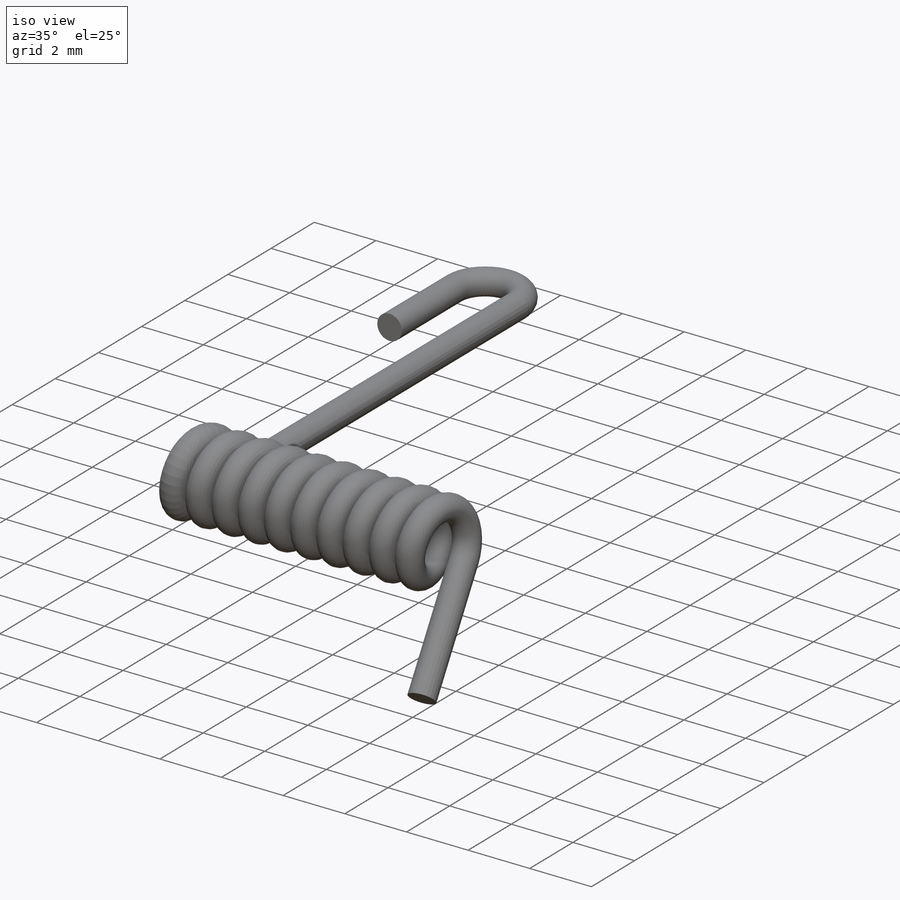
[diagram: iso view]
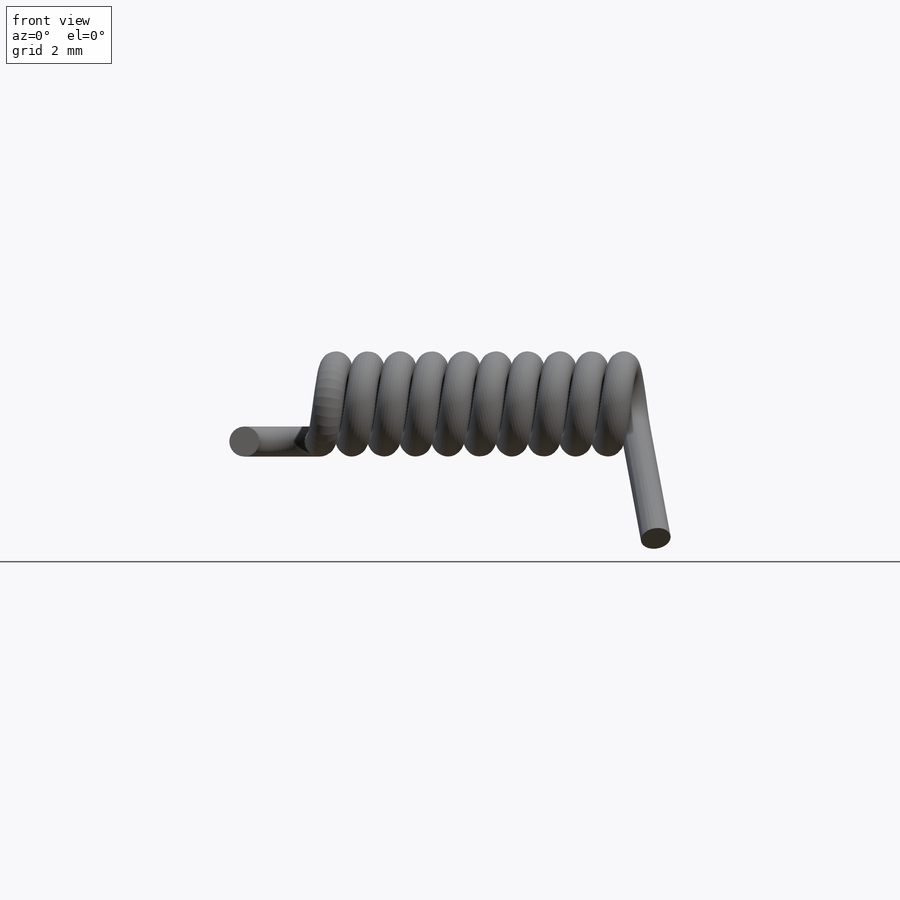
[diagram: front view]
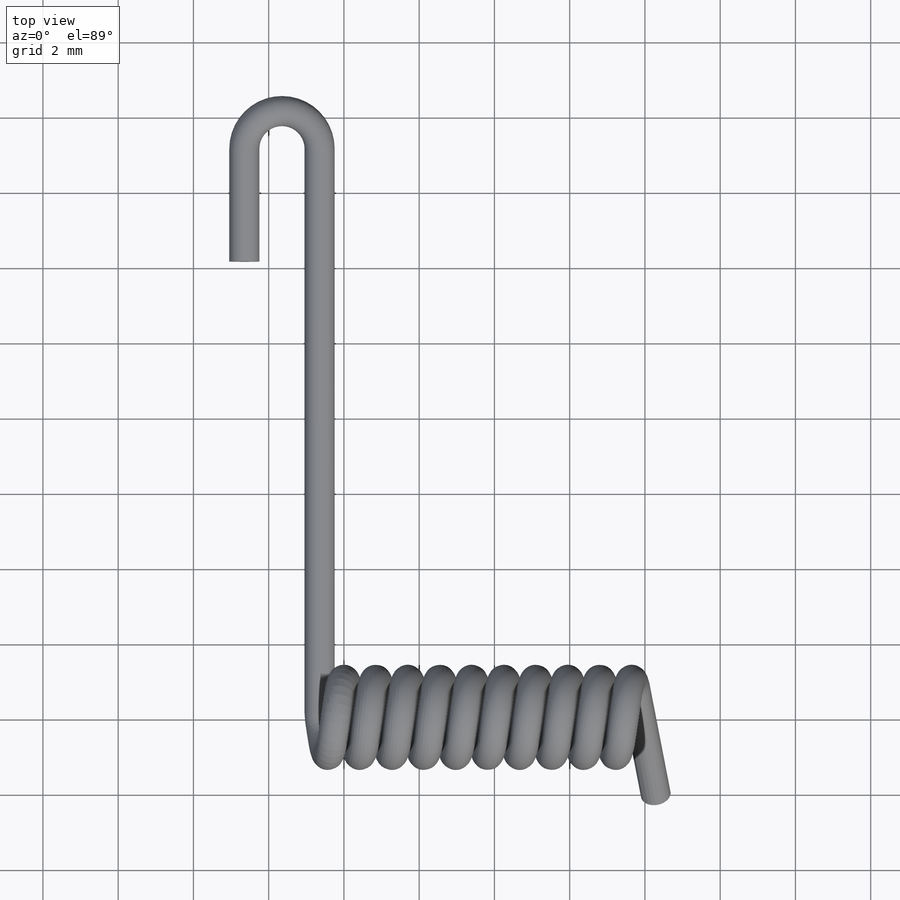
[diagram: top view]
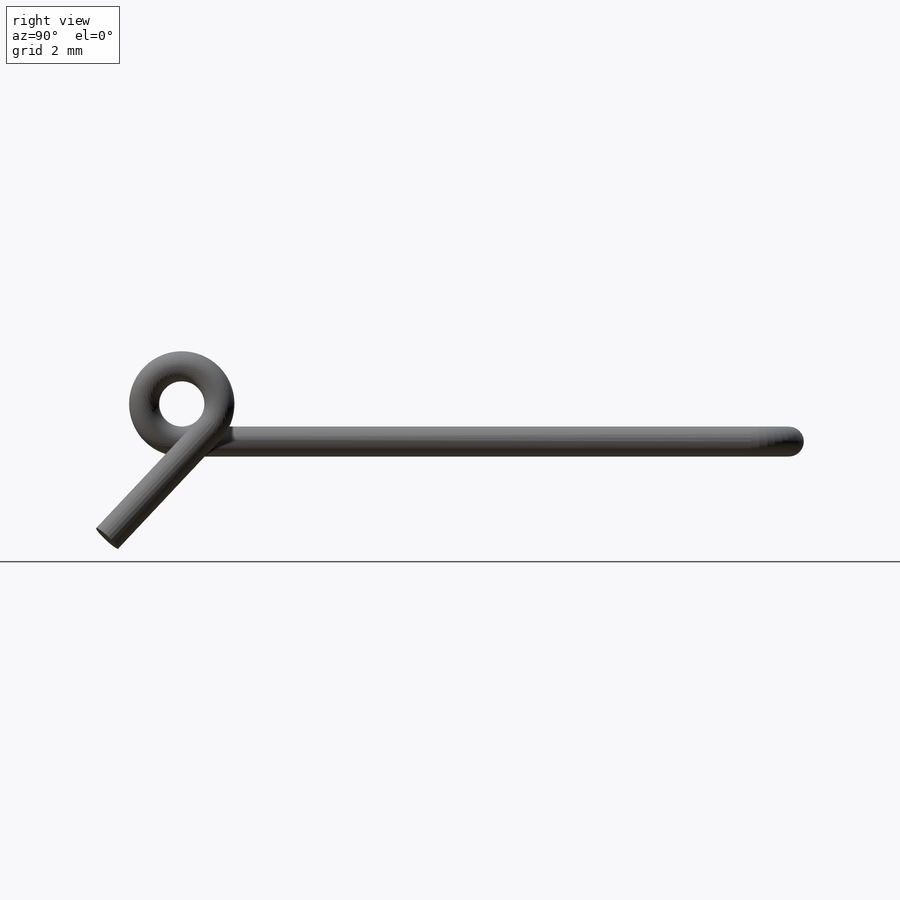
[diagram: right view]
SOLIDWORKS PART (.sldprt)
format: sldprt  version: not decoded by parser v0  size: 804,352 bytes
history: native  units: mm
features: sketch x9, sweep x3, helix x2, plane x2, material x1, extrude x1 + 1 further entry (+15 scaffold rows collapsed)
feature tree (34):
  scaffold x15  (default folders/planes/origin — collapsed)
  material  "Material <not specified>"
  "Design Table"
  sketch  "Sketch1"  dims[D1=2.0mm]
  helix  "Helix/Spiral1"  Pitch=7.752mm
  sketch  "Sketch2"
  helix  "Helix/Spiral2"  Pitch=0.6375mm
  plane  "Plane1"
  sketch  "Sketch3"  dims[D1=0.8mm D2=10.0mm]
  sweep  "Sweep1"
  sketch  "Sketch4"  dims[D1=0.0mm]
  extrude  "Extrude1"  Depth=4mm
  sketch  "Sketch5"  dims[D1=0.0mm]
  sweep  "Sweep2"
  sketch  "Sketch6"  dims[D1=10.2mm]
  sketch  "Sketch7"  dims[D1=5.0mm]
  plane  "Plane2"
  sketch  "Sketch8"  dims[D1=1.0mm D3=1.0mm D2=5.0mm D4=3.0mm D5=15.0mm]
  sketch  "Sketch9"  dims[D1=0.0mm]
  sweep  "Sweep3"
decode coverage: 11 of 15 modeling features carry decoded parameters; 1 rows unclassified (native names shown)
note: suppression state not decoded; provenance and decode notes live in map.json
